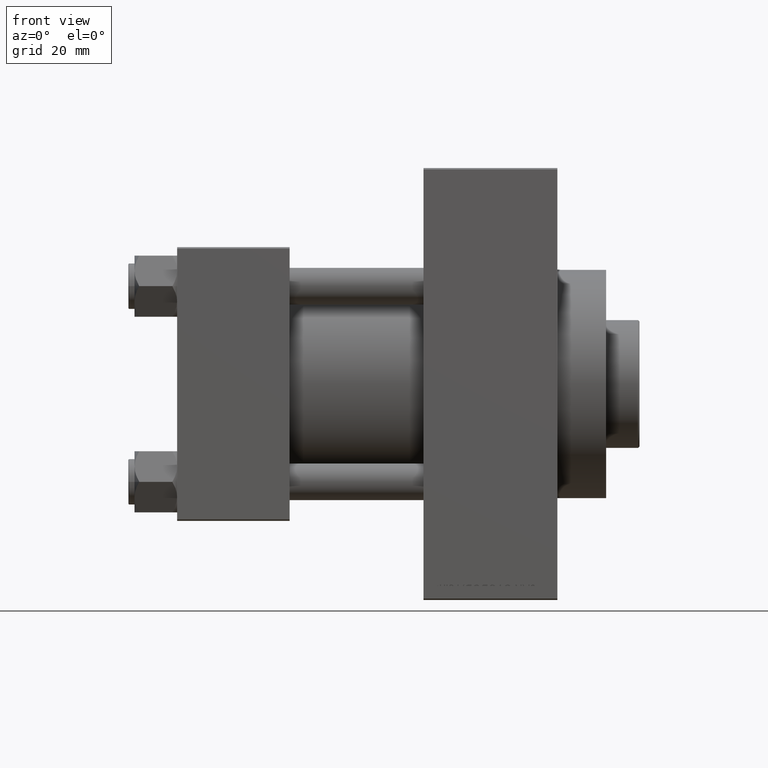
[diagram: clean part render]
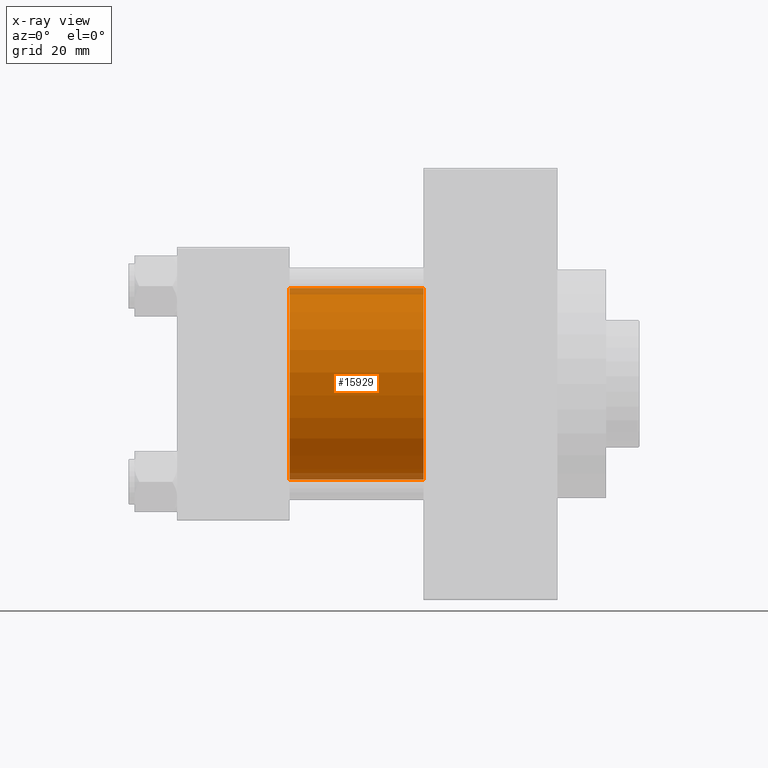
[diagram: x-ray — body ghosted, one internal face saturated and labeled with its STEP entity id]
A machine part, front view, then the same camera in x-ray: the body is ghosted and one INTERNAL B-rep face — a face not visible from any outside direction — is saturated and labeled: STEP entity #15929.
In plain terms, the highlighted cylindrical surface (partial cylindrical patch) has radius 31.5 mm, axis along (-1, -0, -0).
Its self-contained STEP definition (entity closure, byte-faithful):
#6219 = CYLINDRICAL_SURFACE ( 'NONE', #40838, 31.50000000000000000 ) ;
#6424 = CARTESIAN_POINT ( 'NONE',  ( 80.99999999999998579, 1.255552203348951850E-15, -31.50000000000000000 ) ) ;
#7865 = EDGE_CURVE ( 'NONE', #45416, #12602, #20020, .T. ) ;
#8988 = EDGE_LOOP ( 'NONE', ( #10957, #36184, #20443, #48556 ) ) ;
#10205 = CARTESIAN_POINT ( 'NONE',  ( 80.99999999999998579, -2.602085213965210642E-15, 0.000000000000000000 ) ) ;
#10957 = ORIENTED_EDGE ( 'NONE', *, *, #35926, .T. ) ;
#12602 = VERTEX_POINT ( 'NONE', #12716 ) ;
#12716 = CARTESIAN_POINT ( 'NONE',  ( 37.00000000000000000, -2.602085213965210642E-15, 31.50000000000000000 ) ) ;
#12832 = DIRECTION ( 'NONE',  ( 0.000000000000000000, 0.000000000000000000, -1.000000000000000000 ) ) ;
#13107 = VERTEX_POINT ( 'NONE', #34505 ) ;
#13686 = FACE_OUTER_BOUND ( 'NONE', #8988, .T. ) ;
#15929 = ADVANCED_FACE ( 'NONE', ( #13686 ), #6219, .F. ) ;
#18396 = DIRECTION ( 'NONE',  ( -1.000000000000000000, -0.000000000000000000, -0.000000000000000000 ) ) ;
#19501 = VERTEX_POINT ( 'NONE', #6424 ) ;
#20020 = LINE ( 'NONE', #39732, #30055 ) ;
#20313 = CARTESIAN_POINT ( 'NONE',  ( 80.99999999999998579, -2.602085213965210642E-15, 0.000000000000000000 ) ) ;
#20443 = ORIENTED_EDGE ( 'NONE', *, *, #38063, .F. ) ;
#22542 = DIRECTION ( 'NONE',  ( -1.000000000000000000, -0.000000000000000000, -0.000000000000000000 ) ) ;
#23047 = LINE ( 'NONE', #34028, #29680 ) ;
#29680 = VECTOR ( 'NONE', #22542, 1000.000000000000000 ) ;
#30055 = VECTOR ( 'NONE', #46466, 1000.000000000000000 ) ;
#33197 = EDGE_CURVE ( 'NONE', #19501, #13107, #23047, .T. ) ;
#34028 = CARTESIAN_POINT ( 'NONE',  ( 80.99999999999998579, 1.255552203348951850E-15, -31.50000000000000000 ) ) ;
#34428 = CARTESIAN_POINT ( 'NONE',  ( 80.99999999999998579, -2.602085213965210642E-15, 31.50000000000000000 ) ) ;
#34505 = CARTESIAN_POINT ( 'NONE',  ( 37.00000000000000000, 1.255552203348951850E-15, -31.50000000000000000 ) ) ;
#34528 = CIRCLE ( 'NONE', #40911, 31.50000000000000000 ) ;
#35455 = AXIS2_PLACEMENT_3D ( 'NONE', #38676, #45927, #45681 ) ;
#35926 = EDGE_CURVE ( 'NONE', #45416, #19501, #34528, .T. ) ;
#36184 = ORIENTED_EDGE ( 'NONE', *, *, #33197, .T. ) ;
#36889 = DIRECTION ( 'NONE',  ( 0.000000000000000000, 0.000000000000000000, 1.000000000000000000 ) ) ;
#38063 = EDGE_CURVE ( 'NONE', #12602, #13107, #48966, .T. ) ;
#38676 = CARTESIAN_POINT ( 'NONE',  ( 37.00000000000000000, -2.602085213965210642E-15, 0.000000000000000000 ) ) ;
#39732 = CARTESIAN_POINT ( 'NONE',  ( 80.99999999999998579, -2.602085213965210642E-15, 31.50000000000000000 ) ) ;
#40838 = AXIS2_PLACEMENT_3D ( 'NONE', #10205, #18396, #36889 ) ;
#40911 = AXIS2_PLACEMENT_3D ( 'NONE', #20313, #47003, #12832 ) ;
#45416 = VERTEX_POINT ( 'NONE', #34428 ) ;
#45681 = DIRECTION ( 'NONE',  ( 0.000000000000000000, 0.000000000000000000, -1.000000000000000000 ) ) ;
#45927 = DIRECTION ( 'NONE',  ( 1.000000000000000000, 0.000000000000000000, 0.000000000000000000 ) ) ;
#46466 = DIRECTION ( 'NONE',  ( -1.000000000000000000, -0.000000000000000000, -0.000000000000000000 ) ) ;
#47003 = DIRECTION ( 'NONE',  ( 1.000000000000000000, 0.000000000000000000, 0.000000000000000000 ) ) ;
#48556 = ORIENTED_EDGE ( 'NONE', *, *, #7865, .F. ) ;
#48966 = CIRCLE ( 'NONE', #35455, 31.50000000000000000 ) ;